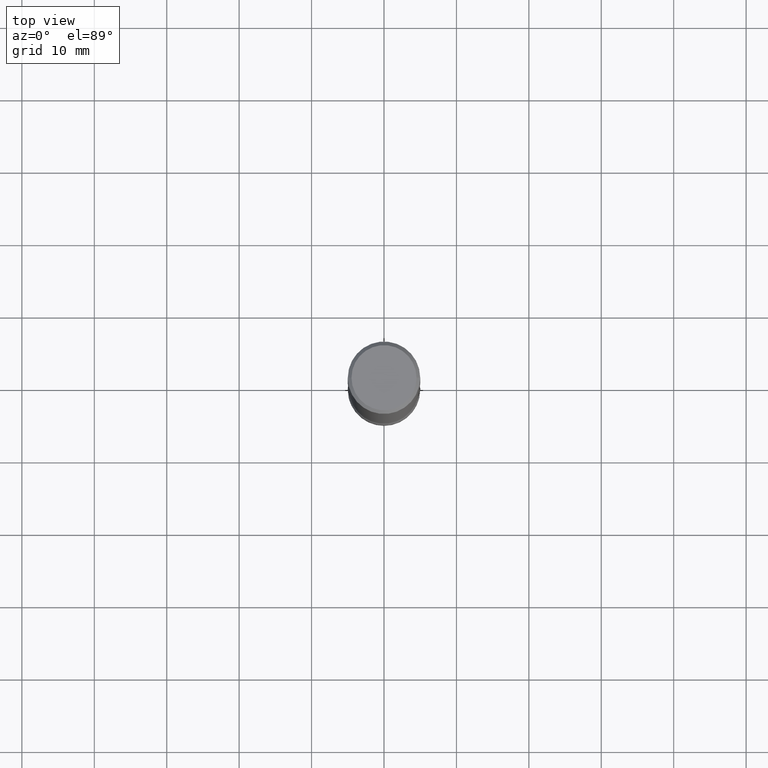
[diagram: clean part render]
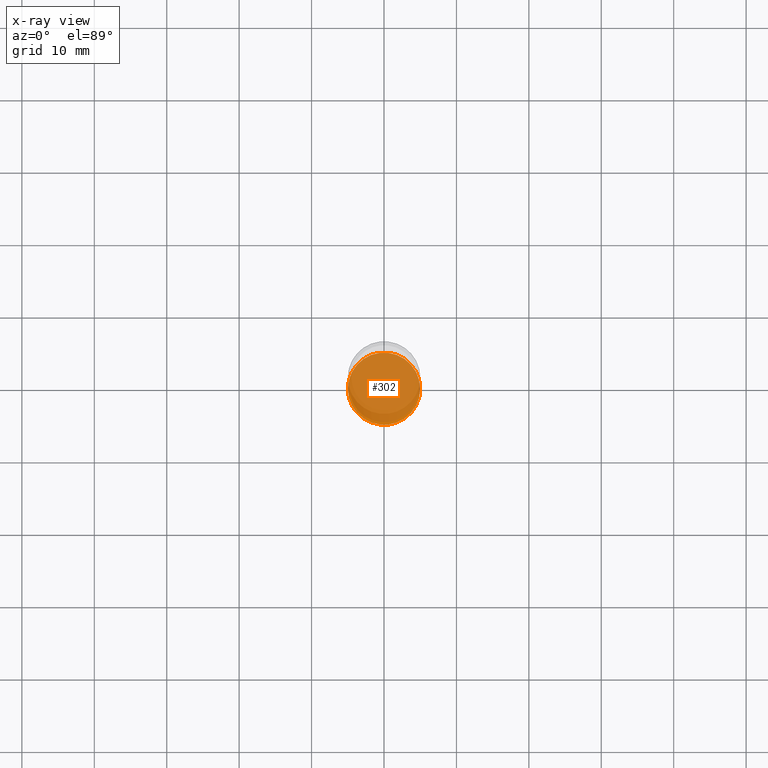
[diagram: x-ray — body ghosted, one internal face saturated and labeled with its STEP entity id]
A machine part, top view, then the same camera in x-ray: the body is ghosted and one INTERNAL B-rep face — a face not visible from any outside direction — is saturated and labeled: STEP entity #302.
In plain terms, the highlighted planar face has unit normal (0, -0, -1).
Its self-contained STEP definition (entity closure, byte-faithful):
#10 = DIRECTION ( 'NONE',  ( 2.445468806185136597E-29, -3.491481338843145583E-15, -1.000000000000000000 ) ) ;
#58 = CARTESIAN_POINT ( 'NONE',  ( 1.371104721763778671E-15, 0.1963499999999872847, -3.464600000000000346 ) ) ;
#68 = DIRECTION ( 'NONE',  ( 2.438088387897960049E-29, -3.491481338843145188E-15, -1.000000000000000000 ) ) ;
#70 = AXIS2_PLACEMENT_3D ( 'NONE', #263, #94, #487 ) ;
#88 = VERTEX_POINT ( 'NONE', #386 ) ;
#94 = DIRECTION ( 'NONE',  ( 2.445468806185136597E-29, -3.491481338843145583E-15, -1.000000000000000000 ) ) ;
#95 = CARTESIAN_POINT ( 'NONE',  ( -0.1963499999999993584, -1.069948931888517385E-14, -3.464599999999999902 ) ) ;
#96 = DIRECTION ( 'NONE',  ( -1.000000000000000000, 6.982962677686264344E-15, 0.000000000000000000 ) ) ;
#137 = EDGE_LOOP ( 'NONE', ( #368, #559 ) ) ;
#182 = CARTESIAN_POINT ( 'NONE',  ( 8.472571225909024784E-29, -1.209658624655596216E-14, -3.464599999999999902 ) ) ;
#230 = FACE_OUTER_BOUND ( 'NONE', #137, .T. ) ;
#263 = CARTESIAN_POINT ( 'NONE',  ( 8.472571225909024784E-29, -1.209658624655596216E-14, -3.464599999999999902 ) ) ;
#281 = PLANE ( 'NONE',  #337 ) ;
#292 = VERTEX_POINT ( 'NONE', #95 ) ;
#297 = CIRCLE ( 'NONE', #508, 0.1963499999999993584 ) ;
#302 = ADVANCED_FACE ( 'NONE', ( #230 ), #281, .T. ) ;
#337 = AXIS2_PLACEMENT_3D ( 'NONE', #58, #68, #503 ) ;
#368 = ORIENTED_EDGE ( 'NONE', *, *, #451, .T. ) ;
#386 = CARTESIAN_POINT ( 'NONE',  ( 0.1963499999999993584, -1.346833222622179061E-14, -3.464599999999999902 ) ) ;
#451 = EDGE_CURVE ( 'NONE', #88, #292, #553, .T. ) ;
#465 = EDGE_CURVE ( 'NONE', #292, #88, #297, .T. ) ;
#487 = DIRECTION ( 'NONE',  ( -1.000000000000000000, 6.982962677686264344E-15, 0.000000000000000000 ) ) ;
#503 = DIRECTION ( 'NONE',  ( -1.000000000000000000, 6.982962677686265922E-15, -4.876176775795935793E-29 ) ) ;
#508 = AXIS2_PLACEMENT_3D ( 'NONE', #182, #10, #96 ) ;
#553 = CIRCLE ( 'NONE', #70, 0.1963499999999993584 ) ;
#559 = ORIENTED_EDGE ( 'NONE', *, *, #465, .T. ) ;